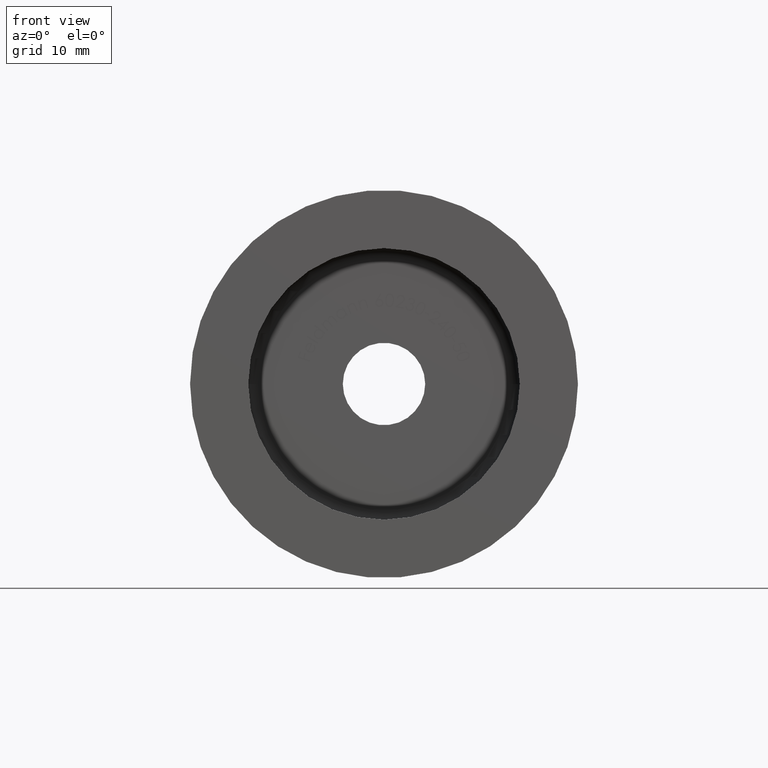
[diagram: clean part render]
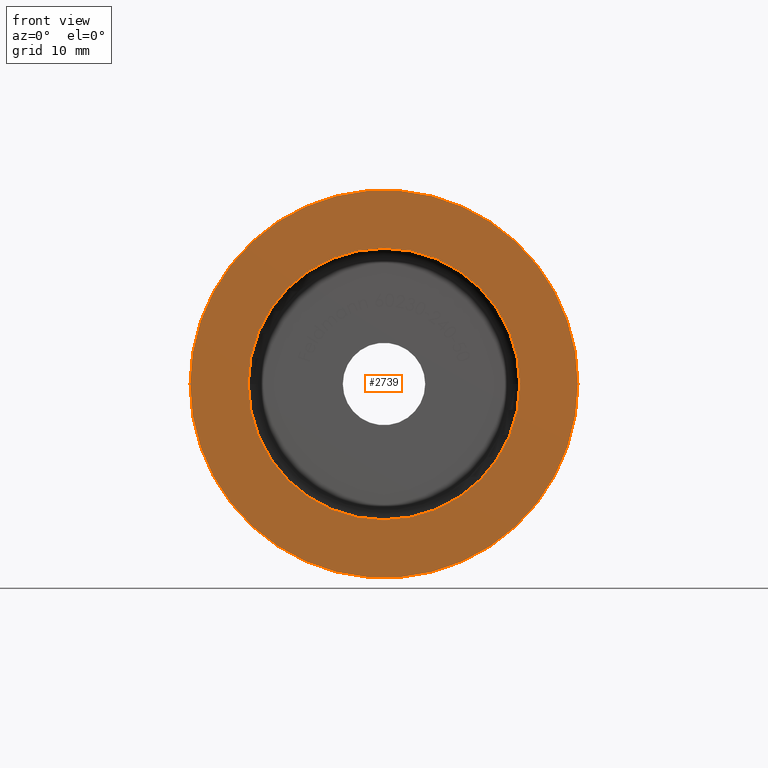
[diagram: same view with one face highlighted and labeled with its STEP entity id]
A machine part, front view. The second image highlights one B-rep face of the part: STEP entity #2739.
In plain terms, the highlighted planar face has unit normal (0, -1, 0).
Its self-contained STEP definition (entity closure, byte-faithful):
#169 = AXIS2_PLACEMENT_3D ( 'NONE', #7472, #12598, #9037 ) ;
#783 = ORIENTED_EDGE ( 'NONE', *, *, #1055, .F. ) ;
#1015 = CIRCLE ( 'NONE', #2437, 20.00000000000000000 ) ;
#1034 = CARTESIAN_POINT ( 'NONE',  ( 20.00000000000000000, 1.387778780781445478E-15, 2.449293598294706907E-15 ) ) ;
#1055 = EDGE_CURVE ( 'NONE', #13784, #12744, #10284, .T. ) ;
#1607 = FACE_BOUND ( 'NONE', #13253, .T. ) ;
#2437 = AXIS2_PLACEMENT_3D ( 'NONE', #14556, #6026, #5872 ) ;
#2618 = PLANE ( 'NONE',  #169 ) ;
#2739 = ADVANCED_FACE ( 'NONE', ( #1607, #8710 ), #2618, .T. ) ;
#2901 = EDGE_CURVE ( 'NONE', #12740, #14169, #6767, .T. ) ;
#3005 = CARTESIAN_POINT ( 'NONE',  ( 0.000000000000000000, 0.000000000000000000, 0.000000000000000000 ) ) ;
#3050 = DIRECTION ( 'NONE',  ( -6.938893903907228378E-17, 1.000000000000000000, -0.000000000000000000 ) ) ;
#3619 = DIRECTION ( 'NONE',  ( 0.000000000000000000, 0.000000000000000000, -1.000000000000000000 ) ) ;
#4488 = CARTESIAN_POINT ( 'NONE',  ( 0.000000000000000000, 0.000000000000000000, 0.000000000000000000 ) ) ;
#4511 = ORIENTED_EDGE ( 'NONE', *, *, #2901, .F. ) ;
#5484 = AXIS2_PLACEMENT_3D ( 'NONE', #4488, #14142, #8019 ) ;
#5563 = ORIENTED_EDGE ( 'NONE', *, *, #11912, .F. ) ;
#5872 = DIRECTION ( 'NONE',  ( -1.000000000000000000, -6.938893903907228378E-17, 0.000000000000000000 ) ) ;
#6026 = DIRECTION ( 'NONE',  ( -6.938893903907228378E-17, 1.000000000000000000, -0.000000000000000000 ) ) ;
#6767 = CIRCLE ( 'NONE', #7042, 20.00000000000000000 ) ;
#7042 = AXIS2_PLACEMENT_3D ( 'NONE', #3005, #3050, #14085 ) ;
#7472 = CARTESIAN_POINT ( 'NONE',  ( -8.499999999999998224, -8.086506792897466301E-16, 0.000000000000000000 ) ) ;
#8019 = DIRECTION ( 'NONE',  ( 0.000000000000000000, 0.000000000000000000, -1.000000000000000000 ) ) ;
#8710 = FACE_OUTER_BOUND ( 'NONE', #10771, .T. ) ;
#9037 = DIRECTION ( 'NONE',  ( 1.000000000000000000, 6.938893903907228378E-17, 0.000000000000000000 ) ) ;
#9746 = CARTESIAN_POINT ( 'NONE',  ( 0.000000000000000000, 0.000000000000000000, 0.000000000000000000 ) ) ;
#9778 = CARTESIAN_POINT ( 'NONE',  ( 1.714505518806294638E-15, 0.000000000000000000, 14.00000000000000000 ) ) ;
#9955 = DIRECTION ( 'NONE',  ( 0.000000000000000000, -1.000000000000000000, 0.000000000000000000 ) ) ;
#10284 = CIRCLE ( 'NONE', #13050, 14.00000000000000000 ) ;
#10771 = EDGE_LOOP ( 'NONE', ( #15214, #4511 ) ) ;
#11446 = CARTESIAN_POINT ( 'NONE',  ( 0.000000000000000000, 0.000000000000000000, -14.00000000000000000 ) ) ;
#11912 = EDGE_CURVE ( 'NONE', #12744, #13784, #13851, .T. ) ;
#12093 = CARTESIAN_POINT ( 'NONE',  ( -20.00000000000000000, -1.387778780781445676E-15, 0.000000000000000000 ) ) ;
#12329 = EDGE_CURVE ( 'NONE', #14169, #12740, #1015, .T. ) ;
#12598 = DIRECTION ( 'NONE',  ( 6.938893903907228378E-17, -1.000000000000000000, 0.000000000000000000 ) ) ;
#12740 = VERTEX_POINT ( 'NONE', #1034 ) ;
#12744 = VERTEX_POINT ( 'NONE', #9778 ) ;
#13050 = AXIS2_PLACEMENT_3D ( 'NONE', #9746, #9955, #3619 ) ;
#13253 = EDGE_LOOP ( 'NONE', ( #783, #5563 ) ) ;
#13784 = VERTEX_POINT ( 'NONE', #11446 ) ;
#13851 = CIRCLE ( 'NONE', #5484, 14.00000000000000000 ) ;
#14085 = DIRECTION ( 'NONE',  ( -1.000000000000000000, -6.938893903907228378E-17, 0.000000000000000000 ) ) ;
#14142 = DIRECTION ( 'NONE',  ( 0.000000000000000000, -1.000000000000000000, 0.000000000000000000 ) ) ;
#14169 = VERTEX_POINT ( 'NONE', #12093 ) ;
#14556 = CARTESIAN_POINT ( 'NONE',  ( 0.000000000000000000, 0.000000000000000000, 0.000000000000000000 ) ) ;
#15214 = ORIENTED_EDGE ( 'NONE', *, *, #12329, .F. ) ;